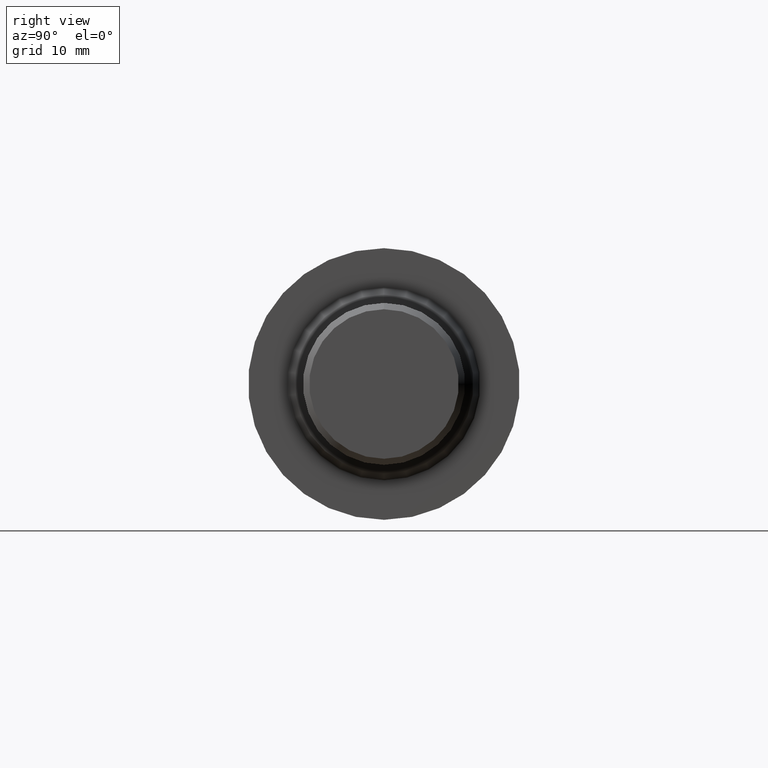
[diagram: clean part render]
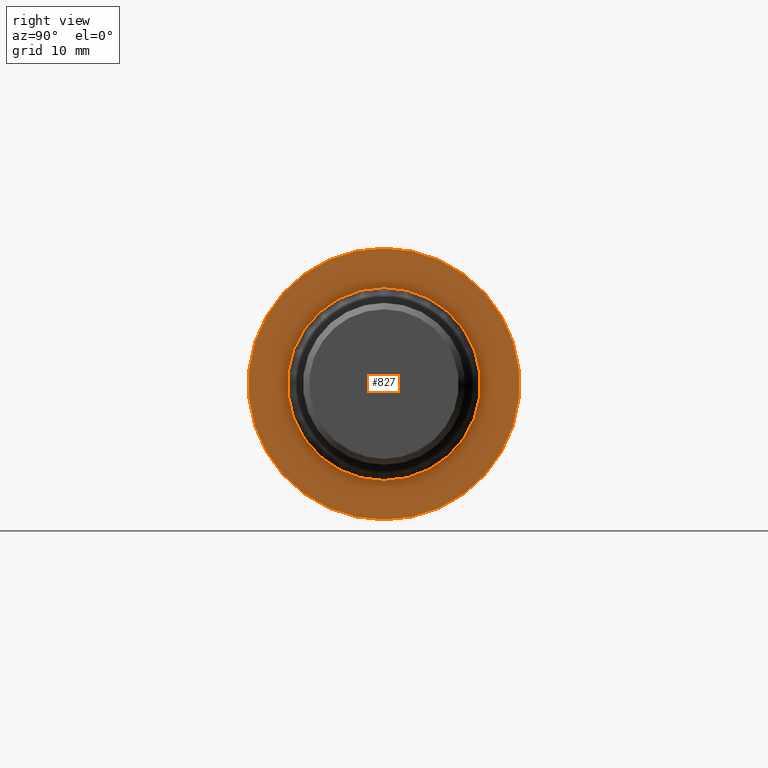
[diagram: same view with one face highlighted and labeled with its STEP entity id]
A machine part, right view. The second image highlights one B-rep face of the part: STEP entity #827.
In plain terms, the highlighted planar face has unit normal (-1, 0, -0).
Its self-contained STEP definition (entity closure, byte-faithful):
#22 = DIRECTION ( 'NONE',  ( -1.000000000000000000, -0.0000000000000000000, -0.0000000000000000000 ) ) ;
#104 = DIRECTION ( 'NONE',  ( -1.000000000000000000, -0.0000000000000000000, -0.0000000000000000000 ) ) ;
#105 = FACE_OUTER_BOUND ( 'NONE', #845, .T. ) ;
#122 = CARTESIAN_POINT ( 'NONE',  ( 3.110000000000000320, 0.0000000000000000000, 0.0000000000000000000 ) ) ;
#144 = FACE_BOUND ( 'NONE', #818, .T. ) ;
#166 = DIRECTION ( 'NONE',  ( 0.0000000000000000000, 0.0000000000000000000, 1.000000000000000000 ) ) ;
#173 = DIRECTION ( 'NONE',  ( 0.0000000000000000000, 0.0000000000000000000, 1.000000000000000000 ) ) ;
#190 = ORIENTED_EDGE ( 'NONE', *, *, #543, .F. ) ;
#228 = DIRECTION ( 'NONE',  ( 0.0000000000000000000, 0.0000000000000000000, 1.000000000000000000 ) ) ;
#235 = AXIS2_PLACEMENT_3D ( 'NONE', #238, #104, #173 ) ;
#238 = CARTESIAN_POINT ( 'NONE',  ( 3.110000000000000320, 0.0000000000000000000, 0.0000000000000000000 ) ) ;
#274 = ORIENTED_EDGE ( 'NONE', *, *, #428, .T. ) ;
#290 = CARTESIAN_POINT ( 'NONE',  ( 3.110000000000000320, 0.0000000000000000000, 0.8175000000000000044 ) ) ;
#298 = DIRECTION ( 'NONE',  ( -0.0000000000000000000, 0.0000000000000000000, 1.000000000000000000 ) ) ;
#309 = DIRECTION ( 'NONE',  ( -1.000000000000000000, -0.0000000000000000000, -0.0000000000000000000 ) ) ;
#369 = EDGE_CURVE ( 'NONE', #464, #797, #656, .T. ) ;
#378 = AXIS2_PLACEMENT_3D ( 'NONE', #554, #539, #298 ) ;
#407 = CARTESIAN_POINT ( 'NONE',  ( 3.110000000000000320, 1.001148758302961187E-16, -0.8175000000000000044 ) ) ;
#428 = EDGE_CURVE ( 'NONE', #797, #464, #483, .T. ) ;
#435 = VERTEX_POINT ( 'NONE', #290 ) ;
#437 = CARTESIAN_POINT ( 'NONE',  ( 3.110000000000000320, 0.0000000000000000000, 0.5810049524098421792 ) ) ;
#438 = AXIS2_PLACEMENT_3D ( 'NONE', #675, #22, #166 ) ;
#447 = ORIENTED_EDGE ( 'NONE', *, *, #369, .T. ) ;
#464 = VERTEX_POINT ( 'NONE', #437 ) ;
#466 = CIRCLE ( 'NONE', #438, 0.8175000000000000044 ) ;
#483 = CIRCLE ( 'NONE', #235, 0.5810049524098421792 ) ;
#489 = AXIS2_PLACEMENT_3D ( 'NONE', #122, #611, #751 ) ;
#531 = EDGE_CURVE ( 'NONE', #435, #790, #782, .T. ) ;
#533 = PLANE ( 'NONE',  #378 ) ;
#535 = ORIENTED_EDGE ( 'NONE', *, *, #531, .F. ) ;
#539 = DIRECTION ( 'NONE',  ( -1.000000000000000000, 0.0000000000000000000, -0.0000000000000000000 ) ) ;
#543 = EDGE_CURVE ( 'NONE', #790, #435, #466, .T. ) ;
#549 = AXIS2_PLACEMENT_3D ( 'NONE', #682, #309, #228 ) ;
#554 = CARTESIAN_POINT ( 'NONE',  ( 3.110000000000000320, 0.8175000000000000044, 0.0000000000000000000 ) ) ;
#611 = DIRECTION ( 'NONE',  ( -1.000000000000000000, -0.0000000000000000000, -0.0000000000000000000 ) ) ;
#656 = CIRCLE ( 'NONE', #549, 0.5810049524098421792 ) ;
#675 = CARTESIAN_POINT ( 'NONE',  ( 3.110000000000000320, 0.0000000000000000000, 0.0000000000000000000 ) ) ;
#682 = CARTESIAN_POINT ( 'NONE',  ( 3.110000000000000320, 0.0000000000000000000, 0.0000000000000000000 ) ) ;
#751 = DIRECTION ( 'NONE',  ( 0.0000000000000000000, 0.0000000000000000000, 1.000000000000000000 ) ) ;
#782 = CIRCLE ( 'NONE', #489, 0.8175000000000000044 ) ;
#789 = CARTESIAN_POINT ( 'NONE',  ( 3.110000000000000320, 7.115258552574734305E-17, -0.5810049524098421792 ) ) ;
#790 = VERTEX_POINT ( 'NONE', #407 ) ;
#797 = VERTEX_POINT ( 'NONE', #789 ) ;
#818 = EDGE_LOOP ( 'NONE', ( #447, #274 ) ) ;
#827 = ADVANCED_FACE ( 'NONE', ( #105, #144 ), #533, .F. ) ;
#845 = EDGE_LOOP ( 'NONE', ( #535, #190 ) ) ;